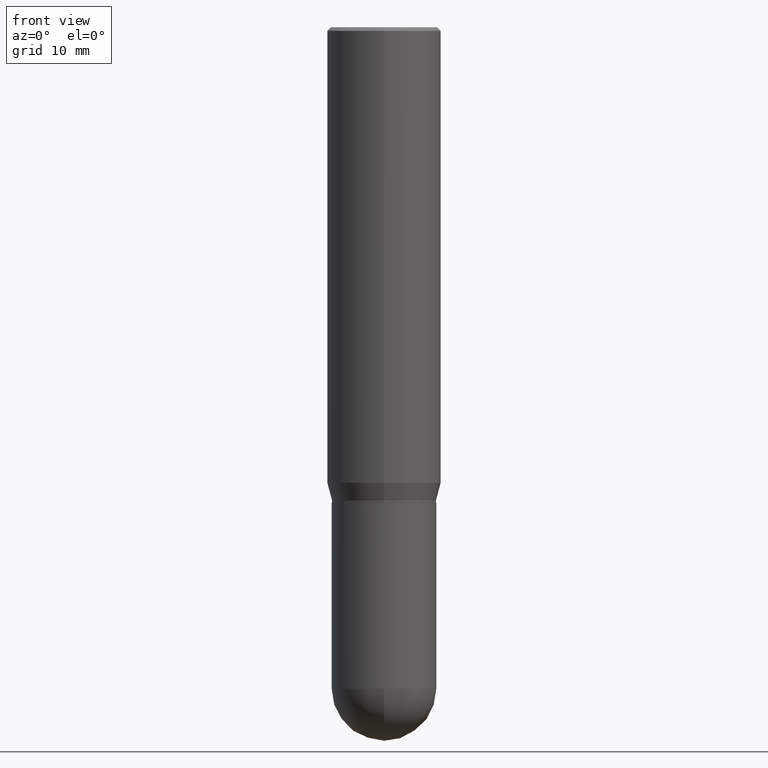
[diagram: clean part render]
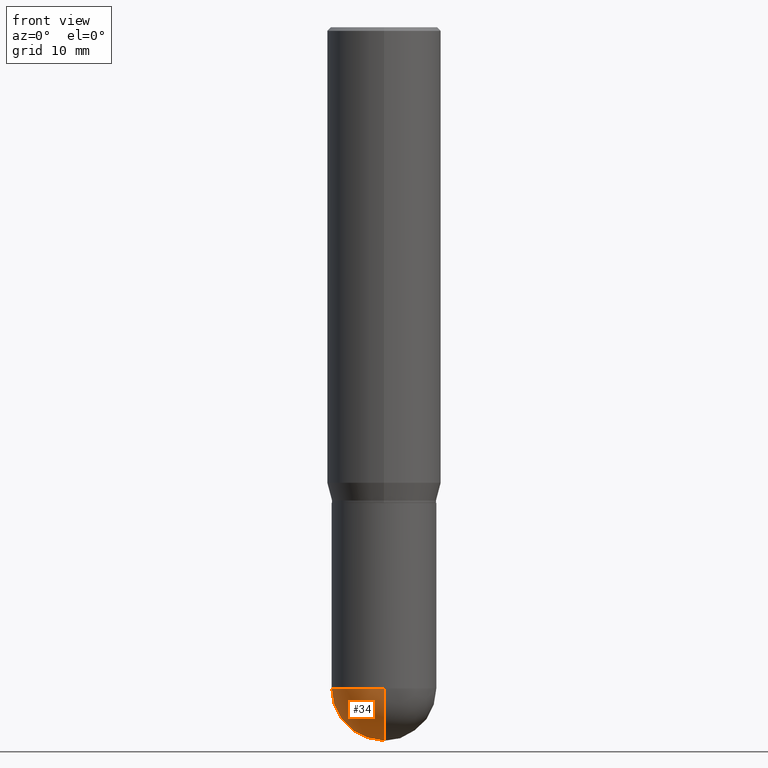
[diagram: same view with one face highlighted and labeled with its STEP entity id]
A machine part, front view. The second image highlights one B-rep face of the part: STEP entity #34.
In plain terms, the highlighted spherical surface has radius 5.5004 mm.
Its self-contained STEP definition (entity closure, byte-faithful):
#9 = ORIENTED_EDGE ( 'NONE', *, *, #396, .T. ) ;
#16 = AXIS2_PLACEMENT_3D ( 'NONE', #434, #357, #486 ) ;
#17 = AXIS2_PLACEMENT_3D ( 'NONE', #31, #145, #185 ) ;
#20 = SPHERICAL_SURFACE ( 'NONE', #226, 0.2165500000000001035 ) ;
#28 = CARTESIAN_POINT ( 'NONE',  ( 6.672895394931898871E-29, -9.580085539845092024E-15, -2.736249999999999627 ) ) ;
#30 = CARTESIAN_POINT ( 'NONE',  ( -1.538680294288430240E-15, -0.2165500000000096792, -2.736249999999998295 ) ) ;
#31 = CARTESIAN_POINT ( 'NONE',  ( 6.691414020924076964E-29, -9.553565813409554172E-15, -2.736249999999999183 ) ) ;
#34 = ADVANCED_FACE ( 'NONE', ( #348 ), #20, .T. ) ;
#45 = DIRECTION ( 'NONE',  ( -1.000000000000000000, 7.105427357601001070E-15, -4.926315508542082329E-29 ) ) ;
#52 = EDGE_CURVE ( 'NONE', #424, #58, #502, .T. ) ;
#58 = VERTEX_POINT ( 'NONE', #30 ) ;
#81 = DIRECTION ( 'NONE',  ( -7.105427357601001070E-15, -1.000000000000000000, 0.000000000000000000 ) ) ;
#92 = DIRECTION ( 'NONE',  ( 6.982962677686265922E-15, 1.000000000000000000, -2.523064413451176940E-15 ) ) ;
#105 = VERTEX_POINT ( 'NONE', #210 ) ;
#119 = AXIS2_PLACEMENT_3D ( 'NONE', #195, #45, #81 ) ;
#137 = EDGE_CURVE ( 'NONE', #432, #105, #258, .T. ) ;
#145 = DIRECTION ( 'NONE',  ( -2.445468806185136597E-29, 3.491481338843145583E-15, 1.000000000000000000 ) ) ;
#163 = CARTESIAN_POINT ( 'NONE',  ( -0.2165500000000000480, -6.674593120172645055E-15, -2.736249999999999183 ) ) ;
#184 = ORIENTED_EDGE ( 'NONE', *, *, #223, .F. ) ;
#185 = DIRECTION ( 'NONE',  ( 1.000000000000000000, -6.982962677686263555E-15, 0.000000000000000000 ) ) ;
#195 = CARTESIAN_POINT ( 'NONE',  ( 6.672895394931898871E-29, -9.580085539845092024E-15, -2.736249999999999627 ) ) ;
#199 = EDGE_LOOP ( 'NONE', ( #301, #9, #358, #184 ) ) ;
#210 = CARTESIAN_POINT ( 'NONE',  ( 1.512160567853028073E-15, 0.2165499999999904723, -2.736249999999999627 ) ) ;
#223 = EDGE_CURVE ( 'NONE', #105, #424, #321, .T. ) ;
#226 = AXIS2_PLACEMENT_3D ( 'NONE', #315, #399, #92 ) ;
#258 = CIRCLE ( 'NONE', #388, 0.2165500000000001035 ) ;
#289 = DIRECTION ( 'NONE',  ( 6.982962677686265922E-15, 1.000000000000000000, 0.000000000000000000 ) ) ;
#301 = ORIENTED_EDGE ( 'NONE', *, *, #137, .F. ) ;
#315 = CARTESIAN_POINT ( 'NONE',  ( 6.672895394931898871E-29, -9.580085539845092024E-15, -2.736249999999999627 ) ) ;
#321 = CIRCLE ( 'NONE', #17, 0.2165500000000000480 ) ;
#348 = FACE_OUTER_BOUND ( 'NONE', #199, .T. ) ;
#357 = DIRECTION ( 'NONE',  ( -2.445468806185136597E-29, 3.491481338843145583E-15, 1.000000000000000000 ) ) ;
#358 = ORIENTED_EDGE ( 'NONE', *, *, #52, .F. ) ;
#388 = AXIS2_PLACEMENT_3D ( 'NONE', #28, #418, #289 ) ;
#391 = CARTESIAN_POINT ( 'NONE',  ( 7.211720977907380015E-29, -1.032290596055380666E-14, -2.952799999999999869 ) ) ;
#396 = EDGE_CURVE ( 'NONE', #432, #58, #446, .T. ) ;
#399 = DIRECTION ( 'NONE',  ( -1.000000000000000000, 6.982962677686265922E-15, -4.883557194083112340E-29 ) ) ;
#418 = DIRECTION ( 'NONE',  ( 1.000000000000000000, -6.982962677686265922E-15, 4.883557194083112340E-29 ) ) ;
#424 = VERTEX_POINT ( 'NONE', #163 ) ;
#432 = VERTEX_POINT ( 'NONE', #391 ) ;
#434 = CARTESIAN_POINT ( 'NONE',  ( 6.691414020924076964E-29, -9.553565813409554172E-15, -2.736249999999999183 ) ) ;
#446 = CIRCLE ( 'NONE', #119, 0.2165500000000001035 ) ;
#486 = DIRECTION ( 'NONE',  ( 1.000000000000000000, -6.982962677686263555E-15, 0.000000000000000000 ) ) ;
#502 = CIRCLE ( 'NONE', #16, 0.2165500000000000480 ) ;